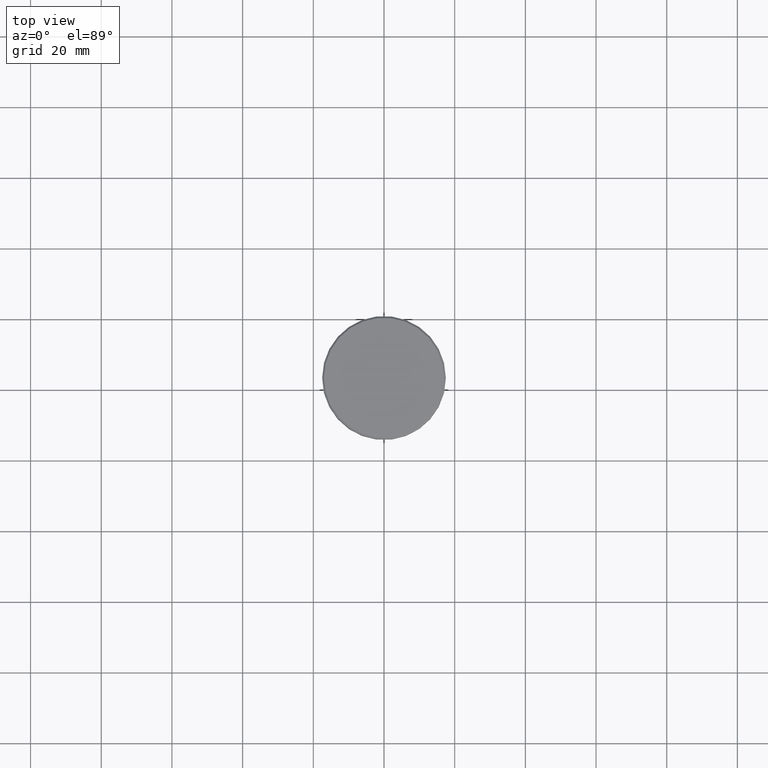
[diagram: clean part render]
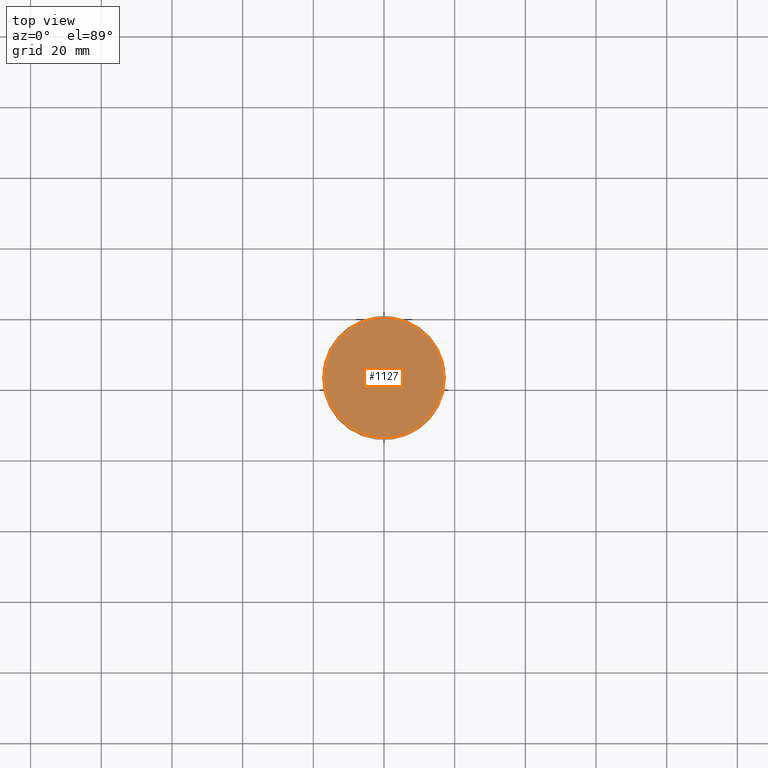
[diagram: same view with one face highlighted and labeled with its STEP entity id]
A machine part, top view. The second image highlights one B-rep face of the part: STEP entity #1127.
In plain terms, the highlighted planar face has unit normal (0, -0, 1).
Its self-contained STEP definition (entity closure, byte-faithful):
#77 = EDGE_CURVE ( 'NONE', #883, #749, #238, .T. ) ;
#153 = DIRECTION ( 'NONE',  ( 1.000000000000000000, 0.000000000000000000, 0.000000000000000000 ) ) ;
#173 = CIRCLE ( 'NONE', #214, 17.00000000000001421 ) ;
#179 = CARTESIAN_POINT ( 'NONE',  ( -17.00000000000001421, 0.000000000000000000, 0.000000000000000000 ) ) ;
#214 = AXIS2_PLACEMENT_3D ( 'NONE', #1159, #778, #419 ) ;
#238 = CIRCLE ( 'NONE', #935, 17.00000000000001421 ) ;
#349 = EDGE_CURVE ( 'NONE', #749, #883, #173, .T. ) ;
#361 = DIRECTION ( 'NONE',  ( 1.000000000000000000, 0.000000000000000000, 0.000000000000000000 ) ) ;
#419 = DIRECTION ( 'NONE',  ( 1.000000000000000000, 0.000000000000000000, 0.000000000000000000 ) ) ;
#437 = DIRECTION ( 'NONE',  ( 0.000000000000000000, -0.000000000000000000, 1.000000000000000000 ) ) ;
#526 = CARTESIAN_POINT ( 'NONE',  ( 0.000000000000000000, 0.000000000000000000, 0.000000000000000000 ) ) ;
#623 = FACE_OUTER_BOUND ( 'NONE', #633, .T. ) ;
#633 = EDGE_LOOP ( 'NONE', ( #760, #759 ) ) ;
#701 = CARTESIAN_POINT ( 'NONE',  ( 0.000000000000000000, 0.000000000000000000, 0.000000000000000000 ) ) ;
#749 = VERTEX_POINT ( 'NONE', #1156 ) ;
#759 = ORIENTED_EDGE ( 'NONE', *, *, #349, .T. ) ;
#760 = ORIENTED_EDGE ( 'NONE', *, *, #77, .T. ) ;
#778 = DIRECTION ( 'NONE',  ( -0.000000000000000000, -0.000000000000000000, 1.000000000000000000 ) ) ;
#815 = PLANE ( 'NONE',  #910 ) ;
#883 = VERTEX_POINT ( 'NONE', #179 ) ;
#910 = AXIS2_PLACEMENT_3D ( 'NONE', #701, #437, #153 ) ;
#935 = AXIS2_PLACEMENT_3D ( 'NONE', #526, #1182, #361 ) ;
#1127 = ADVANCED_FACE ( 'NONE', ( #623 ), #815, .T. ) ;
#1156 = CARTESIAN_POINT ( 'NONE',  ( 17.00000000000001421, 2.112515728529185250E-15, 0.000000000000000000 ) ) ;
#1159 = CARTESIAN_POINT ( 'NONE',  ( 0.000000000000000000, 0.000000000000000000, 0.000000000000000000 ) ) ;
#1182 = DIRECTION ( 'NONE',  ( -0.000000000000000000, -0.000000000000000000, 1.000000000000000000 ) ) ;